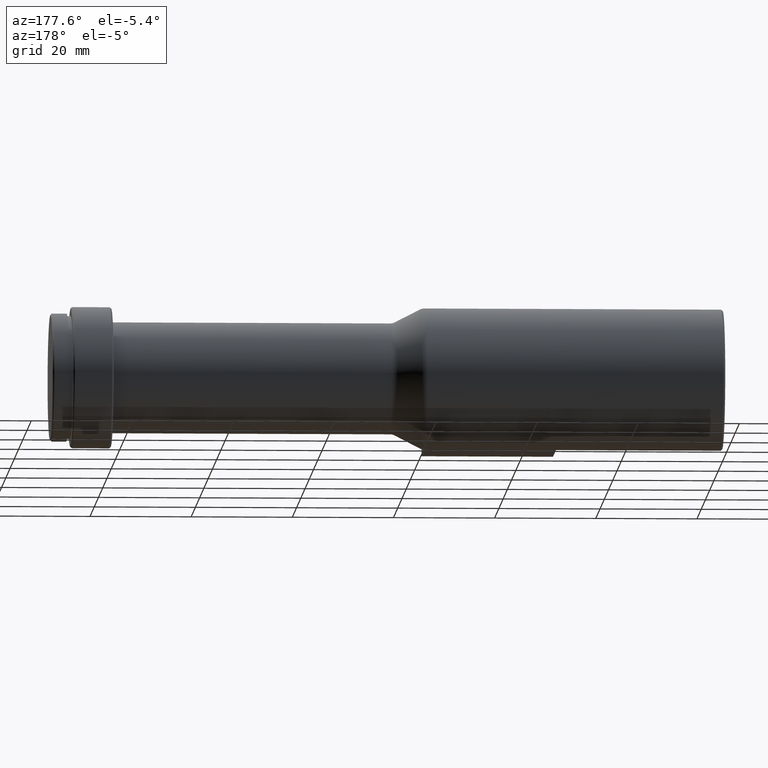
[diagram: clean part render]
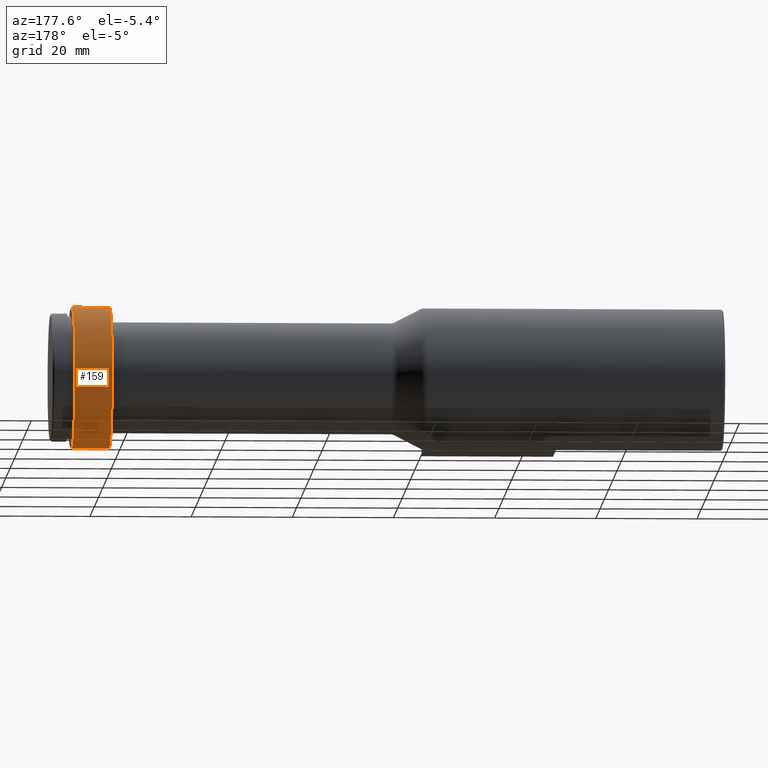
[diagram: same view with one face highlighted and labeled with its STEP entity id]
A machine part, auxiliary view. The second image highlights one B-rep face of the part: STEP entity #159.
In plain terms, the highlighted cylindrical surface (partial cylindrical patch) has radius 14 mm, axis along (-1, -0, -0).
Its self-contained STEP definition (entity closure, byte-faithful):
#12 = DIRECTION ( 'NONE',  ( -1.000000000000000000, -0.0000000000000000000, -0.0000000000000000000 ) ) ;
#59 = CARTESIAN_POINT ( 'NONE',  ( 128.6000000000000200, 0.0000000000000000000, 14.00000000000000000 ) ) ;
#69 = VERTEX_POINT ( 'NONE', #231 ) ;
#75 = CARTESIAN_POINT ( 'NONE',  ( 121.2000000000000000, 1.714505518806294600E-015, 14.00000000000000000 ) ) ;
#122 = VERTEX_POINT ( 'NONE', #59 ) ;
#142 = EDGE_LOOP ( 'NONE', ( #768, #831, #888, #722 ) ) ;
#159 = ADVANCED_FACE ( 'NONE', ( #776 ), #201, .T. ) ;
#189 = VECTOR ( 'NONE', #360, 1000.000000000000000 ) ;
#201 = CYLINDRICAL_SURFACE ( 'NONE', #471, 14.00000000000000000 ) ;
#223 = VERTEX_POINT ( 'NONE', #75 ) ;
#231 = CARTESIAN_POINT ( 'NONE',  ( 121.2000000000000000, 0.0000000000000000000, -14.00000000000000000 ) ) ;
#244 = LINE ( 'NONE', #934, #446 ) ;
#252 = EDGE_CURVE ( 'NONE', #873, #69, #244, .T. ) ;
#289 = CIRCLE ( 'NONE', #920, 14.00000000000000000 ) ;
#344 = EDGE_CURVE ( 'NONE', #122, #873, #289, .T. ) ;
#355 = DIRECTION ( 'NONE',  ( 0.0000000000000000000, 0.0000000000000000000, 1.000000000000000000 ) ) ;
#360 = DIRECTION ( 'NONE',  ( -1.000000000000000000, -0.0000000000000000000, -0.0000000000000000000 ) ) ;
#439 = CARTESIAN_POINT ( 'NONE',  ( 0.0000000000000000000, 0.0000000000000000000, 14.00000000000000000 ) ) ;
#446 = VECTOR ( 'NONE', #588, 1000.000000000000000 ) ;
#471 = AXIS2_PLACEMENT_3D ( 'NONE', #487, #585, #756 ) ;
#482 = EDGE_CURVE ( 'NONE', #122, #223, #838, .T. ) ;
#487 = CARTESIAN_POINT ( 'NONE',  ( 0.0000000000000000000, 0.0000000000000000000, 0.0000000000000000000 ) ) ;
#532 = CARTESIAN_POINT ( 'NONE',  ( 121.2000000000000000, 0.0000000000000000000, 0.0000000000000000000 ) ) ;
#585 = DIRECTION ( 'NONE',  ( -1.000000000000000000, -0.0000000000000000000, -0.0000000000000000000 ) ) ;
#588 = DIRECTION ( 'NONE',  ( -1.000000000000000000, -0.0000000000000000000, -0.0000000000000000000 ) ) ;
#694 = CARTESIAN_POINT ( 'NONE',  ( 128.6000000000000200, 0.0000000000000000000, 0.0000000000000000000 ) ) ;
#722 = ORIENTED_EDGE ( 'NONE', *, *, #482, .F. ) ;
#756 = DIRECTION ( 'NONE',  ( 0.0000000000000000000, 0.0000000000000000000, 1.000000000000000000 ) ) ;
#768 = ORIENTED_EDGE ( 'NONE', *, *, #344, .T. ) ;
#776 = FACE_OUTER_BOUND ( 'NONE', #142, .T. ) ;
#777 = DIRECTION ( 'NONE',  ( -1.000000000000000000, -0.0000000000000000000, -0.0000000000000000000 ) ) ;
#791 = DIRECTION ( 'NONE',  ( 0.0000000000000000000, 0.0000000000000000000, 1.000000000000000000 ) ) ;
#831 = ORIENTED_EDGE ( 'NONE', *, *, #252, .T. ) ;
#838 = LINE ( 'NONE', #439, #189 ) ;
#873 = VERTEX_POINT ( 'NONE', #1025 ) ;
#885 = CIRCLE ( 'NONE', #1097, 14.00000000000000000 ) ;
#888 = ORIENTED_EDGE ( 'NONE', *, *, #1083, .F. ) ;
#920 = AXIS2_PLACEMENT_3D ( 'NONE', #694, #777, #355 ) ;
#934 = CARTESIAN_POINT ( 'NONE',  ( 0.0000000000000000000, 1.714505518806294600E-015, -14.00000000000000000 ) ) ;
#1025 = CARTESIAN_POINT ( 'NONE',  ( 128.6000000000000200, 1.714505518806294600E-015, -14.00000000000000000 ) ) ;
#1083 = EDGE_CURVE ( 'NONE', #223, #69, #885, .T. ) ;
#1097 = AXIS2_PLACEMENT_3D ( 'NONE', #532, #12, #791 ) ;